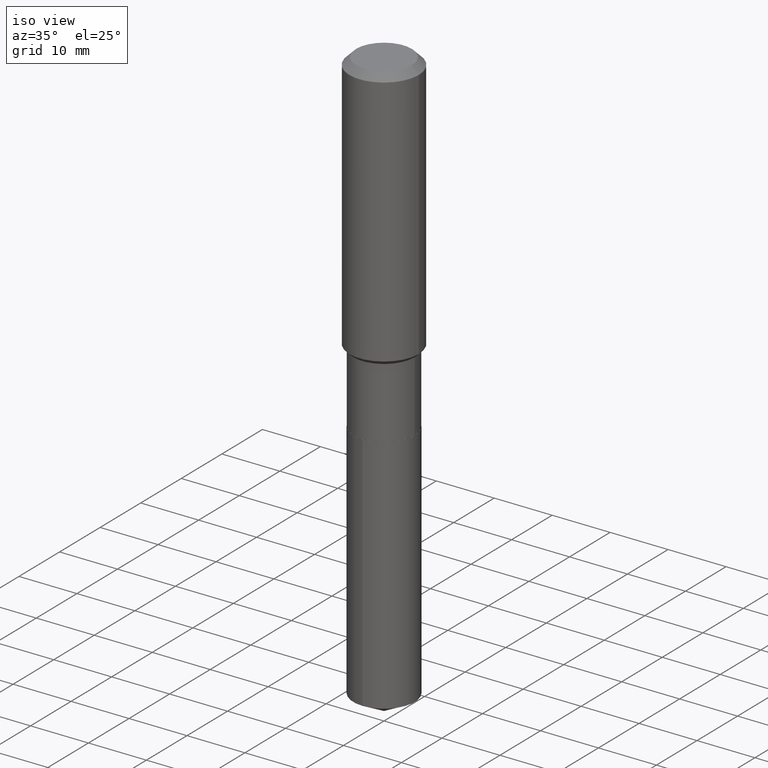
[diagram: clean part render]
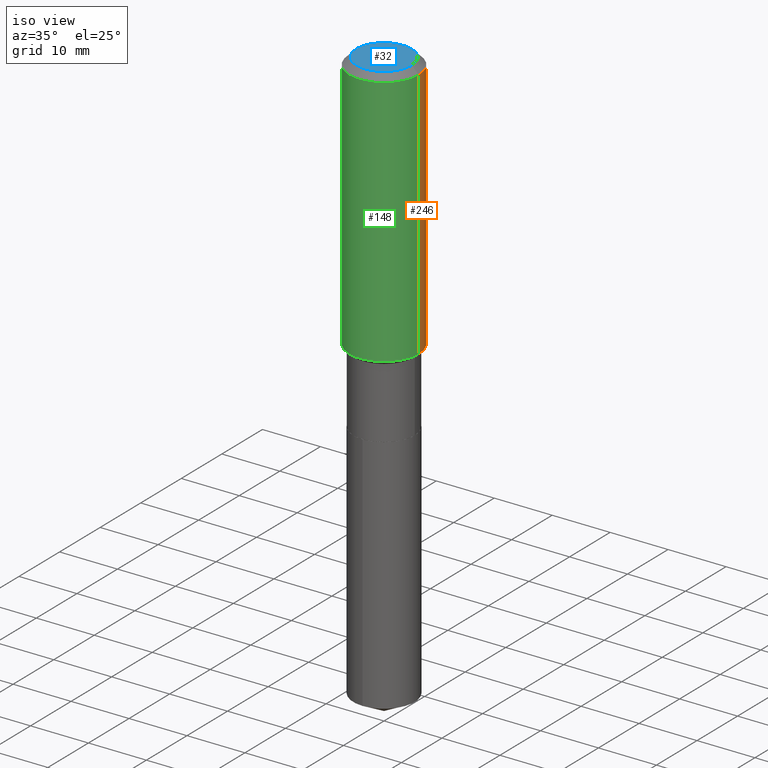
[diagram: same view with three faces highlighted in distinct colors, each labeled with its STEP entity id]
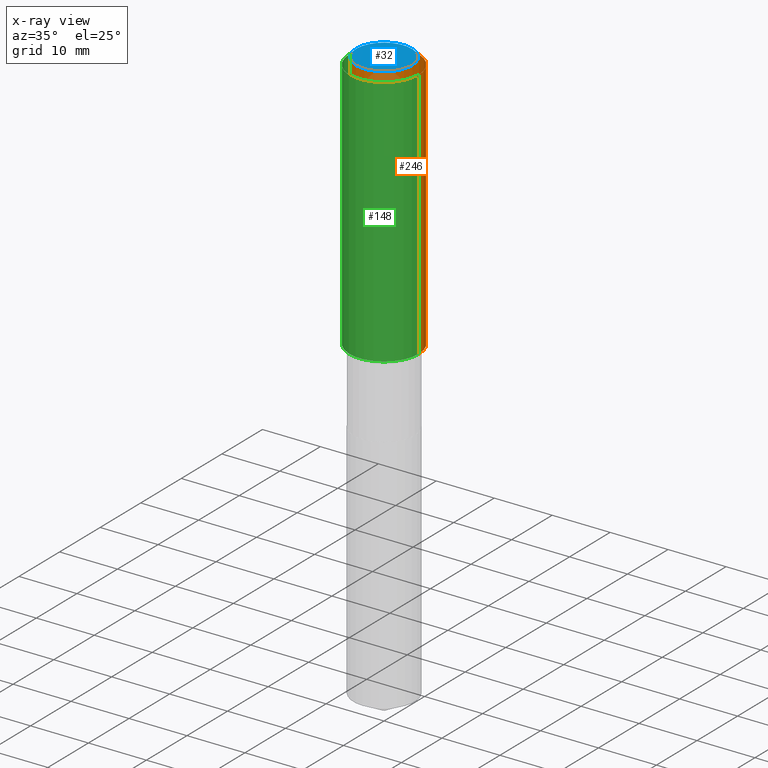
[diagram: x-ray of the same camera — body ghosted, the three highlighted faces saturated]
A machine part, iso view with three faces highlighted in distinct colors.
The next image is the same camera in x-ray (body ghosted, the three faces saturated) — at least one of them is partly hidden behind the body in this view.
Their STEP definitions:

[orange] entity #246 — the highlighted cylindrical surface (partial cylindrical patch) has radius 5.9995 mm, axis along (-0, 0, 1).
#3 = CARTESIAN_POINT ( 'NONE',  ( 1.155239464041865506E-30, -1.649375784469511859E-16, -0.04724000000000028177 ) ) ;
#4 = CARTESIAN_POINT ( 'NONE',  ( 0.2361999999999999933, -1.814313362916447440E-15, -0.04724000000000028177 ) ) ;
#20 = VERTEX_POINT ( 'NONE', #112 ) ;
#29 = ORIENTED_EDGE ( 'NONE', *, *, #412, .T. ) ;
#38 = DIRECTION ( 'NONE',  ( -2.445468806185136597E-29, 3.491481338843145583E-15, 1.000000000000000000 ) ) ;
#48 = CARTESIAN_POINT ( 'NONE',  ( 0.2362000000000002153, -7.794906663034259691E-15, -1.760149999999999881 ) ) ;
#54 = LINE ( 'NONE', #254, #411 ) ;
#63 = EDGE_CURVE ( 'NONE', #301, #175, #310, .T. ) ;
#67 = DIRECTION ( 'NONE',  ( 1.000000000000000000, -6.982962677686266711E-15, 0.000000000000000000 ) ) ;
#86 = EDGE_CURVE ( 'NONE', #175, #333, #164, .T. ) ;
#97 = DIRECTION ( 'NONE',  ( -2.445468806185136597E-29, 3.491481338843145583E-15, 1.000000000000000000 ) ) ;
#98 = AXIS2_PLACEMENT_3D ( 'NONE', #168, #423, #265 ) ;
#112 = CARTESIAN_POINT ( 'NONE',  ( -0.2362000000000002153, -4.467228936699403616E-15, -1.760149999999999881 ) ) ;
#134 = EDGE_LOOP ( 'NONE', ( #29, #482, #404, #173 ) ) ;
#164 = CIRCLE ( 'NONE', #281, 0.2361999999999999933 ) ;
#168 = CARTESIAN_POINT ( 'NONE',  ( 0.000000000000000000, 0.000000000000000000, 0.000000000000000000 ) ) ;
#173 = ORIENTED_EDGE ( 'NONE', *, *, #63, .F. ) ;
#175 = VERTEX_POINT ( 'NONE', #4 ) ;
#194 = AXIS2_PLACEMENT_3D ( 'NONE', #405, #97, #373 ) ;
#210 = DIRECTION ( 'NONE',  ( -2.445468806185136877E-29, 3.491481338843145188E-15, 1.000000000000000000 ) ) ;
#214 = VECTOR ( 'NONE', #224, 39.37007874015748143 ) ;
#215 = CIRCLE ( 'NONE', #194, 0.2362000000000002153 ) ;
#224 = DIRECTION ( 'NONE',  ( -2.445468806185136877E-29, 3.491481338843145188E-15, 1.000000000000000000 ) ) ;
#246 = ADVANCED_FACE ( 'NONE', ( #296 ), #303, .T. ) ;
#254 = CARTESIAN_POINT ( 'NONE',  ( -0.2362000000000001043, 1.678301941865357380E-15, -1.161852468318209317E-29 ) ) ;
#265 = DIRECTION ( 'NONE',  ( 1.000000000000000000, -6.982962677686266711E-15, 4.876176775795935793E-29 ) ) ;
#281 = AXIS2_PLACEMENT_3D ( 'NONE', #3, #38, #67 ) ;
#296 = FACE_OUTER_BOUND ( 'NONE', #134, .T. ) ;
#301 = VERTEX_POINT ( 'NONE', #48 ) ;
#303 = CYLINDRICAL_SURFACE ( 'NONE', #98, 0.2362000000000001043 ) ;
#310 = LINE ( 'NONE', #342, #214 ) ;
#333 = VERTEX_POINT ( 'NONE', #478 ) ;
#342 = CARTESIAN_POINT ( 'NONE',  ( 0.2362000000000001043, -1.649375784469496920E-15, 1.151752954443000508E-29 ) ) ;
#373 = DIRECTION ( 'NONE',  ( 1.000000000000000000, -6.982962677686266711E-15, 0.000000000000000000 ) ) ;
#404 = ORIENTED_EDGE ( 'NONE', *, *, #86, .F. ) ;
#405 = CARTESIAN_POINT ( 'NONE',  ( 4.304391919206767645E-29, -6.145530878564761588E-15, -1.760149999999999881 ) ) ;
#411 = VECTOR ( 'NONE', #210, 39.37007874015748143 ) ;
#412 = EDGE_CURVE ( 'NONE', #301, #20, #215, .T. ) ;
#423 = DIRECTION ( 'NONE',  ( -2.445468806185136597E-29, 3.491481338843145583E-15, 1.000000000000000000 ) ) ;
#426 = EDGE_CURVE ( 'NONE', #20, #333, #54, .T. ) ;
#478 = CARTESIAN_POINT ( 'NONE',  ( -0.2361999999999999933, -1.476932286640498674E-15, -0.04724000000000028177 ) ) ;
#482 = ORIENTED_EDGE ( 'NONE', *, *, #426, .T. ) ;

[blue] entity #32 — the highlighted planar face has unit normal (0, -0, -1).
#12 = AXIS2_PLACEMENT_3D ( 'NONE', #28, #183, #122 ) ;
#14 = VERTEX_POINT ( 'NONE', #451 ) ;
#28 = CARTESIAN_POINT ( 'NONE',  ( -9.427742298522546243E-47, 1.346031739168365344E-32, 3.855188123715862256E-18 ) ) ;
#32 = ADVANCED_FACE ( 'NONE', ( #391 ), #35, .F. ) ;
#34 = CARTESIAN_POINT ( 'NONE',  ( -9.427742298522546243E-47, 1.346031739168365344E-32, 3.855188123715862256E-18 ) ) ;
#35 = PLANE ( 'NONE',  #82 ) ;
#82 = AXIS2_PLACEMENT_3D ( 'NONE', #386, #387, #262 ) ;
#122 = DIRECTION ( 'NONE',  ( 1.000000000000000000, -6.982962677686266711E-15, 4.876185090822587894E-29 ) ) ;
#183 = DIRECTION ( 'NONE',  ( -2.445468806185136597E-29, 3.491481338843145583E-15, 1.000000000000000000 ) ) ;
#262 = DIRECTION ( 'NONE',  ( -1.000000000000000000, 6.982962677686265922E-15, -4.876176775795935793E-29 ) ) ;
#268 = EDGE_CURVE ( 'NONE', #304, #14, #326, .T. ) ;
#300 = EDGE_CURVE ( 'NONE', #14, #304, #382, .T. ) ;
#304 = VERTEX_POINT ( 'NONE', #396 ) ;
#326 = CIRCLE ( 'NONE', #413, 0.1889600000000000168 ) ;
#382 = CIRCLE ( 'NONE', #12, 0.1889600000000000168 ) ;
#386 = CARTESIAN_POINT ( 'NONE',  ( -4.713871149261273121E-47, 6.730158695841826722E-33, 1.927594061857931128E-18 ) ) ;
#387 = DIRECTION ( 'NONE',  ( 2.438088387897960049E-29, -3.491481338843145188E-15, -1.000000000000000000 ) ) ;
#391 = FACE_OUTER_BOUND ( 'NONE', #435, .T. ) ;
#396 = CARTESIAN_POINT ( 'NONE',  ( 0.1889600000000000168, -1.540873453589747738E-15, 3.855188123725863225E-18 ) ) ;
#413 = AXIS2_PLACEMENT_3D ( 'NONE', #34, #490, #458 ) ;
#435 = EDGE_LOOP ( 'NONE', ( #479, #443 ) ) ;
#443 = ORIENTED_EDGE ( 'NONE', *, *, #268, .T. ) ;
#451 = CARTESIAN_POINT ( 'NONE',  ( -0.1889600000000000168, 1.401969416799070942E-15, 3.855188123706346622E-18 ) ) ;
#458 = DIRECTION ( 'NONE',  ( 1.000000000000000000, -6.982962677686266711E-15, 4.876185090822587894E-29 ) ) ;
#479 = ORIENTED_EDGE ( 'NONE', *, *, #300, .T. ) ;
#490 = DIRECTION ( 'NONE',  ( -2.445468806185136597E-29, 3.491481338843145583E-15, 1.000000000000000000 ) ) ;

[green] entity #148 — the highlighted cylindrical surface (partial cylindrical patch) has radius 5.9995 mm, axis along (-0, 0, 1).
#4 = CARTESIAN_POINT ( 'NONE',  ( 0.2361999999999999933, -1.814313362916447440E-15, -0.04724000000000028177 ) ) ;
#20 = VERTEX_POINT ( 'NONE', #112 ) ;
#31 = DIRECTION ( 'NONE',  ( -2.445468806185136597E-29, 3.491481338843145583E-15, 1.000000000000000000 ) ) ;
#48 = CARTESIAN_POINT ( 'NONE',  ( 0.2362000000000002153, -7.794906663034259691E-15, -1.760149999999999881 ) ) ;
#54 = LINE ( 'NONE', #254, #411 ) ;
#60 = CARTESIAN_POINT ( 'NONE',  ( 1.155239464041865506E-30, -1.649375784469511859E-16, -0.04724000000000028177 ) ) ;
#63 = EDGE_CURVE ( 'NONE', #301, #175, #310, .T. ) ;
#75 = DIRECTION ( 'NONE',  ( -2.445468806185136597E-29, 3.491481338843145583E-15, 1.000000000000000000 ) ) ;
#91 = CIRCLE ( 'NONE', #234, 0.2362000000000002153 ) ;
#112 = CARTESIAN_POINT ( 'NONE',  ( -0.2362000000000002153, -4.467228936699403616E-15, -1.760149999999999881 ) ) ;
#120 = AXIS2_PLACEMENT_3D ( 'NONE', #60, #31, #186 ) ;
#148 = ADVANCED_FACE ( 'NONE', ( #190 ), #149, .T. ) ;
#149 = CYLINDRICAL_SURFACE ( 'NONE', #320, 0.2362000000000001043 ) ;
#175 = VERTEX_POINT ( 'NONE', #4 ) ;
#186 = DIRECTION ( 'NONE',  ( 1.000000000000000000, -6.982962677686266711E-15, 0.000000000000000000 ) ) ;
#190 = FACE_OUTER_BOUND ( 'NONE', #421, .T. ) ;
#210 = DIRECTION ( 'NONE',  ( -2.445468806185136877E-29, 3.491481338843145188E-15, 1.000000000000000000 ) ) ;
#214 = VECTOR ( 'NONE', #224, 39.37007874015748143 ) ;
#224 = DIRECTION ( 'NONE',  ( -2.445468806185136877E-29, 3.491481338843145188E-15, 1.000000000000000000 ) ) ;
#232 = DIRECTION ( 'NONE',  ( 1.000000000000000000, -6.982962677686266711E-15, 0.000000000000000000 ) ) ;
#234 = AXIS2_PLACEMENT_3D ( 'NONE', #271, #75, #232 ) ;
#253 = ORIENTED_EDGE ( 'NONE', *, *, #63, .T. ) ;
#254 = CARTESIAN_POINT ( 'NONE',  ( -0.2362000000000001043, 1.678301941865357380E-15, -1.161852468318209317E-29 ) ) ;
#270 = DIRECTION ( 'NONE',  ( 1.000000000000000000, -6.982962677686266711E-15, 4.876176775795935793E-29 ) ) ;
#271 = CARTESIAN_POINT ( 'NONE',  ( 4.304391919206767645E-29, -6.145530878564761588E-15, -1.760149999999999881 ) ) ;
#284 = EDGE_CURVE ( 'NONE', #20, #301, #91, .T. ) ;
#301 = VERTEX_POINT ( 'NONE', #48 ) ;
#309 = CARTESIAN_POINT ( 'NONE',  ( 0.000000000000000000, 0.000000000000000000, 0.000000000000000000 ) ) ;
#310 = LINE ( 'NONE', #342, #214 ) ;
#315 = EDGE_CURVE ( 'NONE', #333, #175, #341, .T. ) ;
#320 = AXIS2_PLACEMENT_3D ( 'NONE', #309, #457, #270 ) ;
#333 = VERTEX_POINT ( 'NONE', #478 ) ;
#334 = ORIENTED_EDGE ( 'NONE', *, *, #426, .F. ) ;
#341 = CIRCLE ( 'NONE', #120, 0.2361999999999999933 ) ;
#342 = CARTESIAN_POINT ( 'NONE',  ( 0.2362000000000001043, -1.649375784469496920E-15, 1.151752954443000508E-29 ) ) ;
#411 = VECTOR ( 'NONE', #210, 39.37007874015748143 ) ;
#421 = EDGE_LOOP ( 'NONE', ( #334, #489, #253, #483 ) ) ;
#426 = EDGE_CURVE ( 'NONE', #20, #333, #54, .T. ) ;
#457 = DIRECTION ( 'NONE',  ( -2.445468806185136597E-29, 3.491481338843145583E-15, 1.000000000000000000 ) ) ;
#478 = CARTESIAN_POINT ( 'NONE',  ( -0.2361999999999999933, -1.476932286640498674E-15, -0.04724000000000028177 ) ) ;
#483 = ORIENTED_EDGE ( 'NONE', *, *, #315, .F. ) ;
#489 = ORIENTED_EDGE ( 'NONE', *, *, #284, .T. ) ;